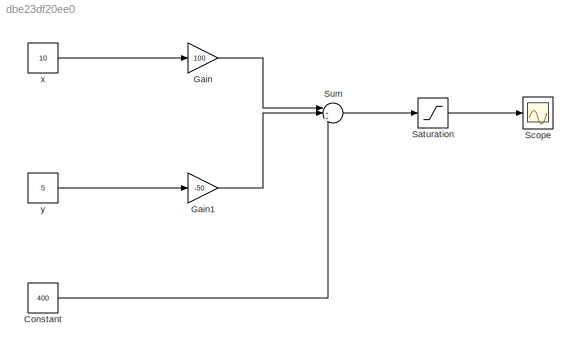
MODEL slx_dbe23df20ee0
KIND model
CONFIG AbsTol = auto
CONFIG EnableMultiTasking = off
CONFIG FixedStep = auto
CONFIG MaxStep = auto
CONFIG MinStep = auto
CONFIG RelTol = 1e-3
CONFIG SampleTimeConstraint = Unconstrained
CONFIG SolverName = VariableStepAuto
CONFIG StartTime = 0.0
CONFIG StopTime = 10.0
BLOCK [Constant] Constant
  Value = 400
BLOCK [Gain] Gain
  Gain = 100
BLOCK [Gain] Gain1
  Gain = -50
BLOCK [Saturate] Saturation
  LowerLimit = 100
  UpperLimit = 3000
BLOCK [Scope] Scope
  Floating = off
  GraphicalSettings = {"GraphicalSettings":{"LegacySettings":true,"Style":{"Style":{"PlotType":"Auto"}}}}
  NumInputPorts = 1
  WasSavedAsWebScope = on
BLOCK [Sum] Sum
  Inputs = |+++
BLOCK [Constant] x
  Value = 10
BLOCK [Constant] y
  Value = 5
LINE Constant:1 -> Sum:3
LINE Gain1:1 -> Sum:2
LINE Gain:1 -> Sum:1
LINE Saturation:1 -> Scope:1
LINE Sum:1 -> Saturation:1
LINE x:1 -> Gain:1
LINE y:1 -> Gain1:1
